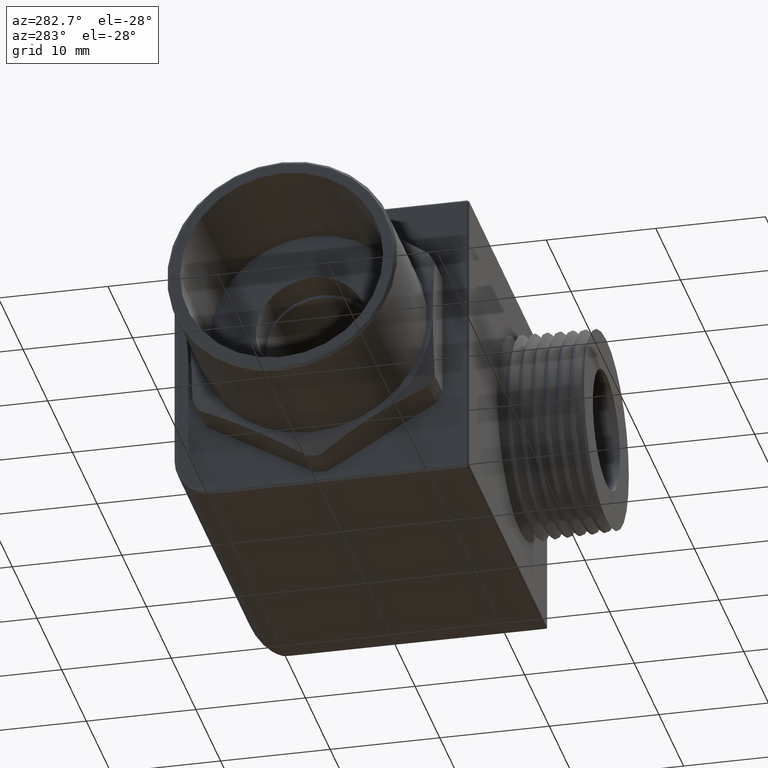
[diagram: clean part render]
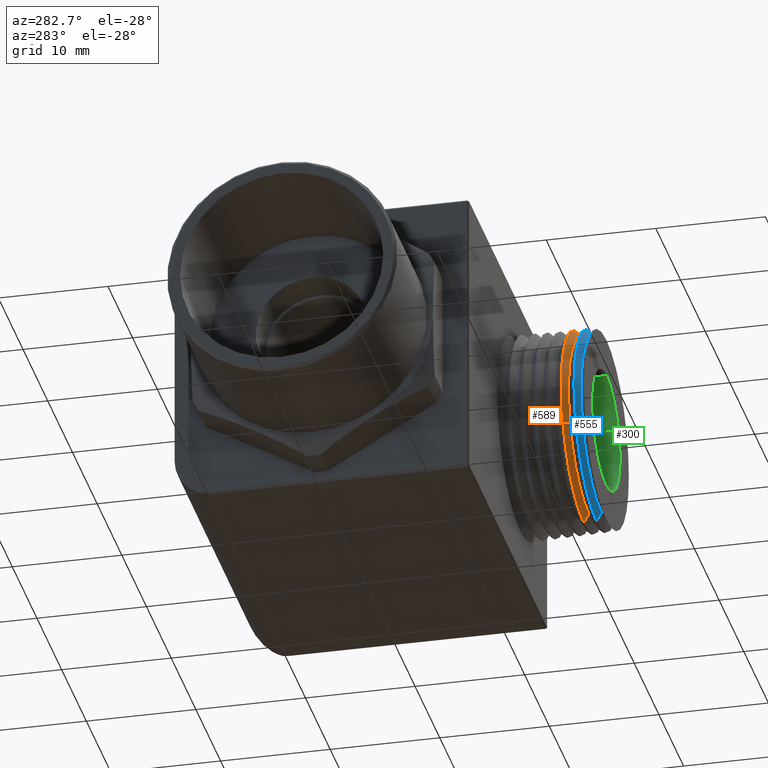
[diagram: same view with three faces highlighted in distinct colors, each labeled with its STEP entity id]
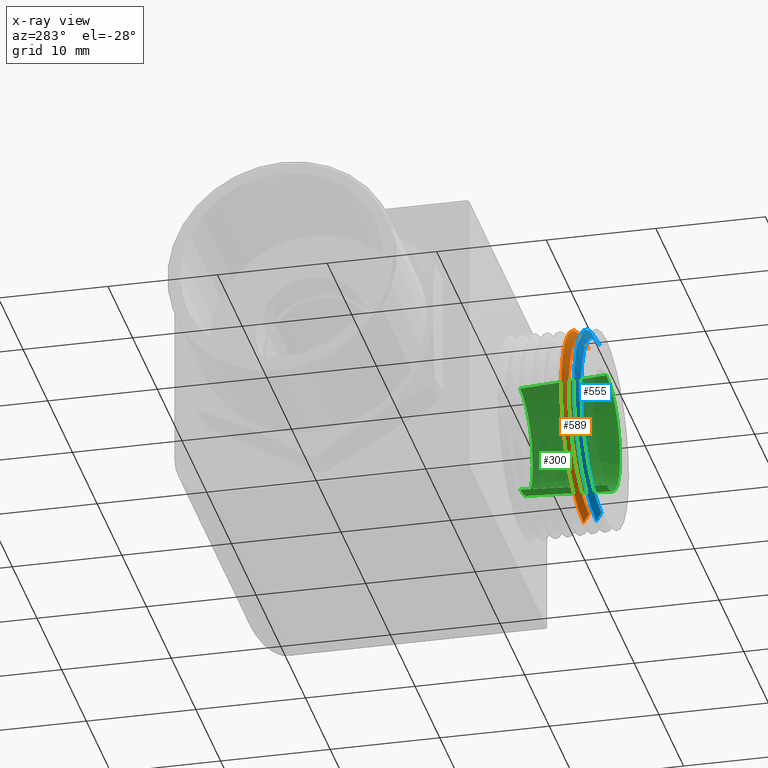
[diagram: x-ray of the same camera — body ghosted, the three highlighted faces saturated]
A machine part, auxiliary view with three faces highlighted in distinct colors.
The next image is the same camera in x-ray (body ghosted, the three faces saturated) — at least one of them is partly hidden behind the body in this view.
Their STEP definitions:

[orange] entity #589 — the highlighted conical surface has half-angle 60 deg.
#20 = EDGE_CURVE ( 'NONE', #33, #21, #1280, .T. ) ;
#21 = VERTEX_POINT ( 'NONE', #1272 ) ;
#32 = VERTEX_POINT ( 'NONE', #1317 ) ;
#33 = VERTEX_POINT ( 'NONE', #1316 ) ;
#35 = EDGE_CURVE ( 'NONE', #32, #3690, #1315, .T. ) ;
#166 = EDGE_CURVE ( 'NONE', #3690, #21, #1601, .T. ) ;
#567 = ORIENTED_EDGE ( 'NONE', *, *, #35, .F. ) ;
#568 = ORIENTED_EDGE ( 'NONE', *, *, #586, .F. ) ;
#569 = ORIENTED_EDGE ( 'NONE', *, *, #20, .T. ) ;
#570 = ORIENTED_EDGE ( 'NONE', *, *, #166, .F. ) ;
#586 = EDGE_CURVE ( 'NONE', #33, #32, #2298, .T. ) ;
#589 = ADVANCED_FACE ( 'NONE', ( #2289 ), #2288, .T. ) ;
#590 = EDGE_LOOP ( 'NONE', ( #567, #568, #569, #570 ) ) ;
#1272 = CARTESIAN_POINT ( 'NONE',  ( 0.5044499999999999500, -0.7584538681236842100, 0.3590177249271367400 ) ) ;
#1273 = DIRECTION ( 'NONE',  ( 0.0000000000000000000, 0.4999999999999997200, 0.8660254037844388200 ) ) ;
#1274 = VECTOR ( 'NONE', #1273, 39.37007874015748100 ) ;
#1275 = CARTESIAN_POINT ( 'NONE',  ( 0.5044499999999999500, -0.7772142011261239400, 0.3265238750000000200 ) ) ;
#1280 = LINE ( 'NONE', #1275, #1274 ) ;
#1312 = DIRECTION ( 'NONE',  ( 1.060575238724907000E-016, 0.4999999999999997200, -0.8660254037844388200 ) ) ;
#1313 = VECTOR ( 'NONE', #1312, 39.37007874015748100 ) ;
#1314 = CARTESIAN_POINT ( 'NONE',  ( 0.5044499999999999500, -0.7772142011261239400, -0.3265238750000000200 ) ) ;
#1315 = LINE ( 'NONE', #1314, #1313 ) ;
#1316 = CARTESIAN_POINT ( 'NONE',  ( 0.5044499999999999500, -0.7772142011261239400, 0.3265238750000000200 ) ) ;
#1317 = CARTESIAN_POINT ( 'NONE',  ( 0.5044499999999999500, -0.7772142011261239400, -0.3265238750000000200 ) ) ;
#1598 = DIRECTION ( 'NONE',  ( 0.0000000000000000000, 0.0000000000000000000, 1.000000000000000000 ) ) ;
#1599 = DIRECTION ( 'NONE',  ( 0.0000000000000000000, 1.000000000000000000, 0.0000000000000000000 ) ) ;
#1600 = AXIS2_PLACEMENT_3D ( 'NONE', #1606, #1599, #1598 ) ;
#1601 = CIRCLE ( 'NONE', #1600, 0.3590177249271367400 ) ;
#1606 = CARTESIAN_POINT ( 'NONE',  ( 0.5044499999999999500, -0.7584538681236842100, -2.785979454945908300E-017 ) ) ;
#2288 = CONICAL_SURFACE ( 'NONE', #2350, 0.3265238750000000200, 1.047197551196598100 ) ;
#2289 = FACE_OUTER_BOUND ( 'NONE', #590, .T. ) ;
#2290 = DIRECTION ( 'NONE',  ( 0.0000000000000000000, 0.0000000000000000000, -1.000000000000000000 ) ) ;
#2291 = DIRECTION ( 'NONE',  ( 0.0000000000000000000, -1.000000000000000000, 0.0000000000000000000 ) ) ;
#2292 = CARTESIAN_POINT ( 'NONE',  ( 0.5044499999999999500, -0.7772142011261239400, -2.785979454945908300E-017 ) ) ;
#2293 = AXIS2_PLACEMENT_3D ( 'NONE', #2292, #2291, #2290 ) ;
#2298 = CIRCLE ( 'NONE', #2293, 0.3265238750000000200 ) ;
#2347 = DIRECTION ( 'NONE',  ( 0.0000000000000000000, 0.0000000000000000000, 1.000000000000000000 ) ) ;
#2348 = DIRECTION ( 'NONE',  ( 0.0000000000000000000, 1.000000000000000000, 0.0000000000000000000 ) ) ;
#2349 = CARTESIAN_POINT ( 'NONE',  ( 0.5044499999999999500, -0.7772142011261239400, -2.785979454945908300E-017 ) ) ;
#2350 = AXIS2_PLACEMENT_3D ( 'NONE', #2349, #2348, #2347 ) ;
#3584 = CARTESIAN_POINT ( 'NONE',  ( 0.5044499999999999500, -0.7584538681236842100, -0.3590177249271367400 ) ) ;
#3690 = VERTEX_POINT ( 'NONE', #3584 ) ;

[blue] entity #555 — the highlighted conical surface has half-angle 60 deg.
#39 = VERTEX_POINT ( 'NONE', #1305 ) ;
#40 = EDGE_CURVE ( 'NONE', #3671, #39, #1361, .T. ) ;
#183 = EDGE_CURVE ( 'NONE', #3694, #39, #1633, .T. ) ;
#555 = ADVANCED_FACE ( 'NONE', ( #2265 ), #2262, .T. ) ;
#556 = EDGE_LOOP ( 'NONE', ( #557, #558, #559, #560 ) ) ;
#557 = ORIENTED_EDGE ( 'NONE', *, *, #3683, .F. ) ;
#558 = ORIENTED_EDGE ( 'NONE', *, *, #575, .F. ) ;
#559 = ORIENTED_EDGE ( 'NONE', *, *, #40, .T. ) ;
#560 = ORIENTED_EDGE ( 'NONE', *, *, #183, .F. ) ;
#575 = EDGE_CURVE ( 'NONE', #3671, #3670, #2309, .T. ) ;
#1305 = CARTESIAN_POINT ( 'NONE',  ( 0.5044499999999999500, -0.8041446417484211500, 0.3578212699125640200 ) ) ;
#1358 = DIRECTION ( 'NONE',  ( 0.0000000000000000000, 0.4999999999999997200, 0.8660254037844388200 ) ) ;
#1359 = VECTOR ( 'NONE', #1358, 39.37007874015748100 ) ;
#1360 = CARTESIAN_POINT ( 'NONE',  ( 0.5044499999999999500, -0.8222142011261239800, 0.3265238750000000200 ) ) ;
#1361 = LINE ( 'NONE', #1360, #1359 ) ;
#1630 = DIRECTION ( 'NONE',  ( 0.0000000000000000000, 0.0000000000000000000, 1.000000000000000000 ) ) ;
#1631 = DIRECTION ( 'NONE',  ( 0.0000000000000000000, 1.000000000000000000, 0.0000000000000000000 ) ) ;
#1632 = AXIS2_PLACEMENT_3D ( 'NONE', #1638, #1631, #1630 ) ;
#1633 = CIRCLE ( 'NONE', #1632, 0.3578212699125640200 ) ;
#1638 = CARTESIAN_POINT ( 'NONE',  ( 0.5044499999999999500, -0.8041446417484211500, -2.785979454945908300E-017 ) ) ;
#2260 = DIRECTION ( 'NONE',  ( 0.0000000000000000000, 1.000000000000000000, 0.0000000000000000000 ) ) ;
#2261 = AXIS2_PLACEMENT_3D ( 'NONE', #2264, #2260, #2317 ) ;
#2262 = CONICAL_SURFACE ( 'NONE', #2261, 0.3265238750000000200, 1.047197551196598100 ) ;
#2264 = CARTESIAN_POINT ( 'NONE',  ( 0.5044499999999999500, -0.8222142011261239800, -2.785979454945908300E-017 ) ) ;
#2265 = FACE_OUTER_BOUND ( 'NONE', #556, .T. ) ;
#2301 = DIRECTION ( 'NONE',  ( 0.0000000000000000000, 0.0000000000000000000, -1.000000000000000000 ) ) ;
#2302 = DIRECTION ( 'NONE',  ( 0.0000000000000000000, -1.000000000000000000, 0.0000000000000000000 ) ) ;
#2303 = CARTESIAN_POINT ( 'NONE',  ( 0.5044499999999999500, -0.8222142011261239800, -2.785979454945908300E-017 ) ) ;
#2304 = AXIS2_PLACEMENT_3D ( 'NONE', #2303, #2302, #2301 ) ;
#2309 = CIRCLE ( 'NONE', #2304, 0.3265238750000000200 ) ;
#2317 = DIRECTION ( 'NONE',  ( 0.0000000000000000000, 0.0000000000000000000, 1.000000000000000000 ) ) ;
#3555 = CARTESIAN_POINT ( 'NONE',  ( 0.5044499999999999500, -0.8222142011261239800, 0.3265238750000000200 ) ) ;
#3556 = CARTESIAN_POINT ( 'NONE',  ( 0.5044499999999999500, -0.8222142011261239800, -0.3265238750000000200 ) ) ;
#3573 = CARTESIAN_POINT ( 'NONE',  ( 0.5044499999999999500, -0.8041446417484211500, -0.3578212699125640200 ) ) ;
#3595 = DIRECTION ( 'NONE',  ( 1.060575238724907000E-016, 0.4999999999999997200, -0.8660254037844388200 ) ) ;
#3596 = VECTOR ( 'NONE', #3595, 39.37007874015748100 ) ;
#3597 = CARTESIAN_POINT ( 'NONE',  ( 0.5044499999999999500, -0.8222142011261239800, -0.3265238750000000200 ) ) ;
#3598 = LINE ( 'NONE', #3597, #3596 ) ;
#3670 = VERTEX_POINT ( 'NONE', #3556 ) ;
#3671 = VERTEX_POINT ( 'NONE', #3555 ) ;
#3683 = EDGE_CURVE ( 'NONE', #3670, #3694, #3598, .T. ) ;
#3694 = VERTEX_POINT ( 'NONE', #3573 ) ;

[green] entity #300 — the highlighted conical surface has half-angle 3 deg.
#282 = ORIENTED_EDGE ( 'NONE', *, *, #283, .F. ) ;
#283 = EDGE_CURVE ( 'NONE', #1166, #1164, #1804, .T. ) ;
#300 = ADVANCED_FACE ( 'NONE', ( #1828 ), #1827, .F. ) ;
#301 = EDGE_LOOP ( 'NONE', ( #302, #303, #305, #306, #282 ) ) ;
#302 = ORIENTED_EDGE ( 'NONE', *, *, #1168, .F. ) ;
#303 = ORIENTED_EDGE ( 'NONE', *, *, #304, .F. ) ;
#304 = EDGE_CURVE ( 'NONE', #1263, #1171, #1877, .T. ) ;
#305 = ORIENTED_EDGE ( 'NONE', *, *, #1260, .F. ) ;
#306 = ORIENTED_EDGE ( 'NONE', *, *, #1162, .T. ) ;
#1162 = EDGE_CURVE ( 'NONE', #1206, #1164, #3375, .T. ) ;
#1164 = VERTEX_POINT ( 'NONE', #3420 ) ;
#1166 = VERTEX_POINT ( 'NONE', #3419 ) ;
#1168 = EDGE_CURVE ( 'NONE', #1171, #1166, #3413, .T. ) ;
#1171 = VERTEX_POINT ( 'NONE', #3409 ) ;
#1206 = VERTEX_POINT ( 'NONE', #3429 ) ;
#1260 = EDGE_CURVE ( 'NONE', #1206, #1263, #3533, .T. ) ;
#1263 = VERTEX_POINT ( 'NONE', #3523 ) ;
#1804 = CIRCLE ( 'NONE', #1856, 0.2169964115777425500 ) ;
#1827 = CONICAL_SURFACE ( 'NONE', #1890, 0.2169964115777425500, 0.05235987755982924500 ) ;
#1828 = FACE_OUTER_BOUND ( 'NONE', #301, .T. ) ;
#1853 = DIRECTION ( 'NONE',  ( 0.0000000000000000000, 0.0000000000000000000, 1.000000000000000000 ) ) ;
#1854 = DIRECTION ( 'NONE',  ( 0.0000000000000000000, 1.000000000000000000, 0.0000000000000000000 ) ) ;
#1855 = CARTESIAN_POINT ( 'NONE',  ( 0.5044499999999999500, -0.8400000000000000800, -2.785979454945908300E-017 ) ) ;
#1856 = AXIS2_PLACEMENT_3D ( 'NONE', #1855, #1854, #1853 ) ;
#1874 = DIRECTION ( 'NONE',  ( 0.0000000000000000000, 0.0000000000000000000, -1.000000000000000000 ) ) ;
#1875 = DIRECTION ( 'NONE',  ( 0.0000000000000000000, -1.000000000000000000, 0.0000000000000000000 ) ) ;
#1876 = AXIS2_PLACEMENT_3D ( 'NONE', #1879, #1875, #1874 ) ;
#1877 = CIRCLE ( 'NONE', #1876, 0.2007500000000000400 ) ;
#1878 = DIRECTION ( 'NONE',  ( 0.0000000000000000000, 0.0000000000000000000, -1.000000000000000000 ) ) ;
#1879 = CARTESIAN_POINT ( 'NONE',  ( 0.5044499999999999500, -0.5300000000000012500, -2.785979454945908300E-017 ) ) ;
#1888 = DIRECTION ( 'NONE',  ( 0.0000000000000000000, -1.000000000000000000, 0.0000000000000000000 ) ) ;
#1889 = CARTESIAN_POINT ( 'NONE',  ( 0.5044499999999999500, -0.8400000000000000800, -2.785979454945908300E-017 ) ) ;
#1890 = AXIS2_PLACEMENT_3D ( 'NONE', #1889, #1888, #1878 ) ;
#3372 = DIRECTION ( 'NONE',  ( 0.0000000000000000000, -0.9986295347545738300, -0.05233595624294319600 ) ) ;
#3373 = VECTOR ( 'NONE', #3372, 39.37007874015748100 ) ;
#3374 = CARTESIAN_POINT ( 'NONE',  ( 0.5044499999999999500, -0.8400000000000000800, -0.2169964115777425800 ) ) ;
#3375 = LINE ( 'NONE', #3374, #3373 ) ;
#3409 = CARTESIAN_POINT ( 'NONE',  ( 0.5044499999999999500, -0.5300000000000012500, 0.2007500000000000100 ) ) ;
#3410 = DIRECTION ( 'NONE',  ( 6.409306129323632400E-018, -0.9986295347545738300, 0.05233595624294319600 ) ) ;
#3411 = VECTOR ( 'NONE', #3410, 39.37007874015748100 ) ;
#3412 = CARTESIAN_POINT ( 'NONE',  ( 0.5044499999999999500, -0.8400000000000000800, 0.2169964115777425200 ) ) ;
#3413 = LINE ( 'NONE', #3412, #3411 ) ;
#3419 = CARTESIAN_POINT ( 'NONE',  ( 0.5044499999999999500, -0.8400000000000000800, 0.2169964115777425200 ) ) ;
#3420 = CARTESIAN_POINT ( 'NONE',  ( 0.5044499999999999500, -0.8400000000000000800, -0.2169964115777425800 ) ) ;
#3429 = CARTESIAN_POINT ( 'NONE',  ( 0.5044499999999999500, -0.5300000000000012500, -0.2007500000000000700 ) ) ;
#3523 = CARTESIAN_POINT ( 'NONE',  ( 0.7052000000000000500, -0.5300000000000012500, 1.137360203378288900E-032 ) ) ;
#3529 = DIRECTION ( 'NONE',  ( 0.0000000000000000000, 0.0000000000000000000, -1.000000000000000000 ) ) ;
#3530 = DIRECTION ( 'NONE',  ( 0.0000000000000000000, -1.000000000000000000, 0.0000000000000000000 ) ) ;
#3531 = CARTESIAN_POINT ( 'NONE',  ( 0.5044499999999999500, -0.5300000000000012500, -2.785979454945908300E-017 ) ) ;
#3532 = AXIS2_PLACEMENT_3D ( 'NONE', #3531, #3530, #3529 ) ;
#3533 = CIRCLE ( 'NONE', #3532, 0.2007500000000000400 ) ;